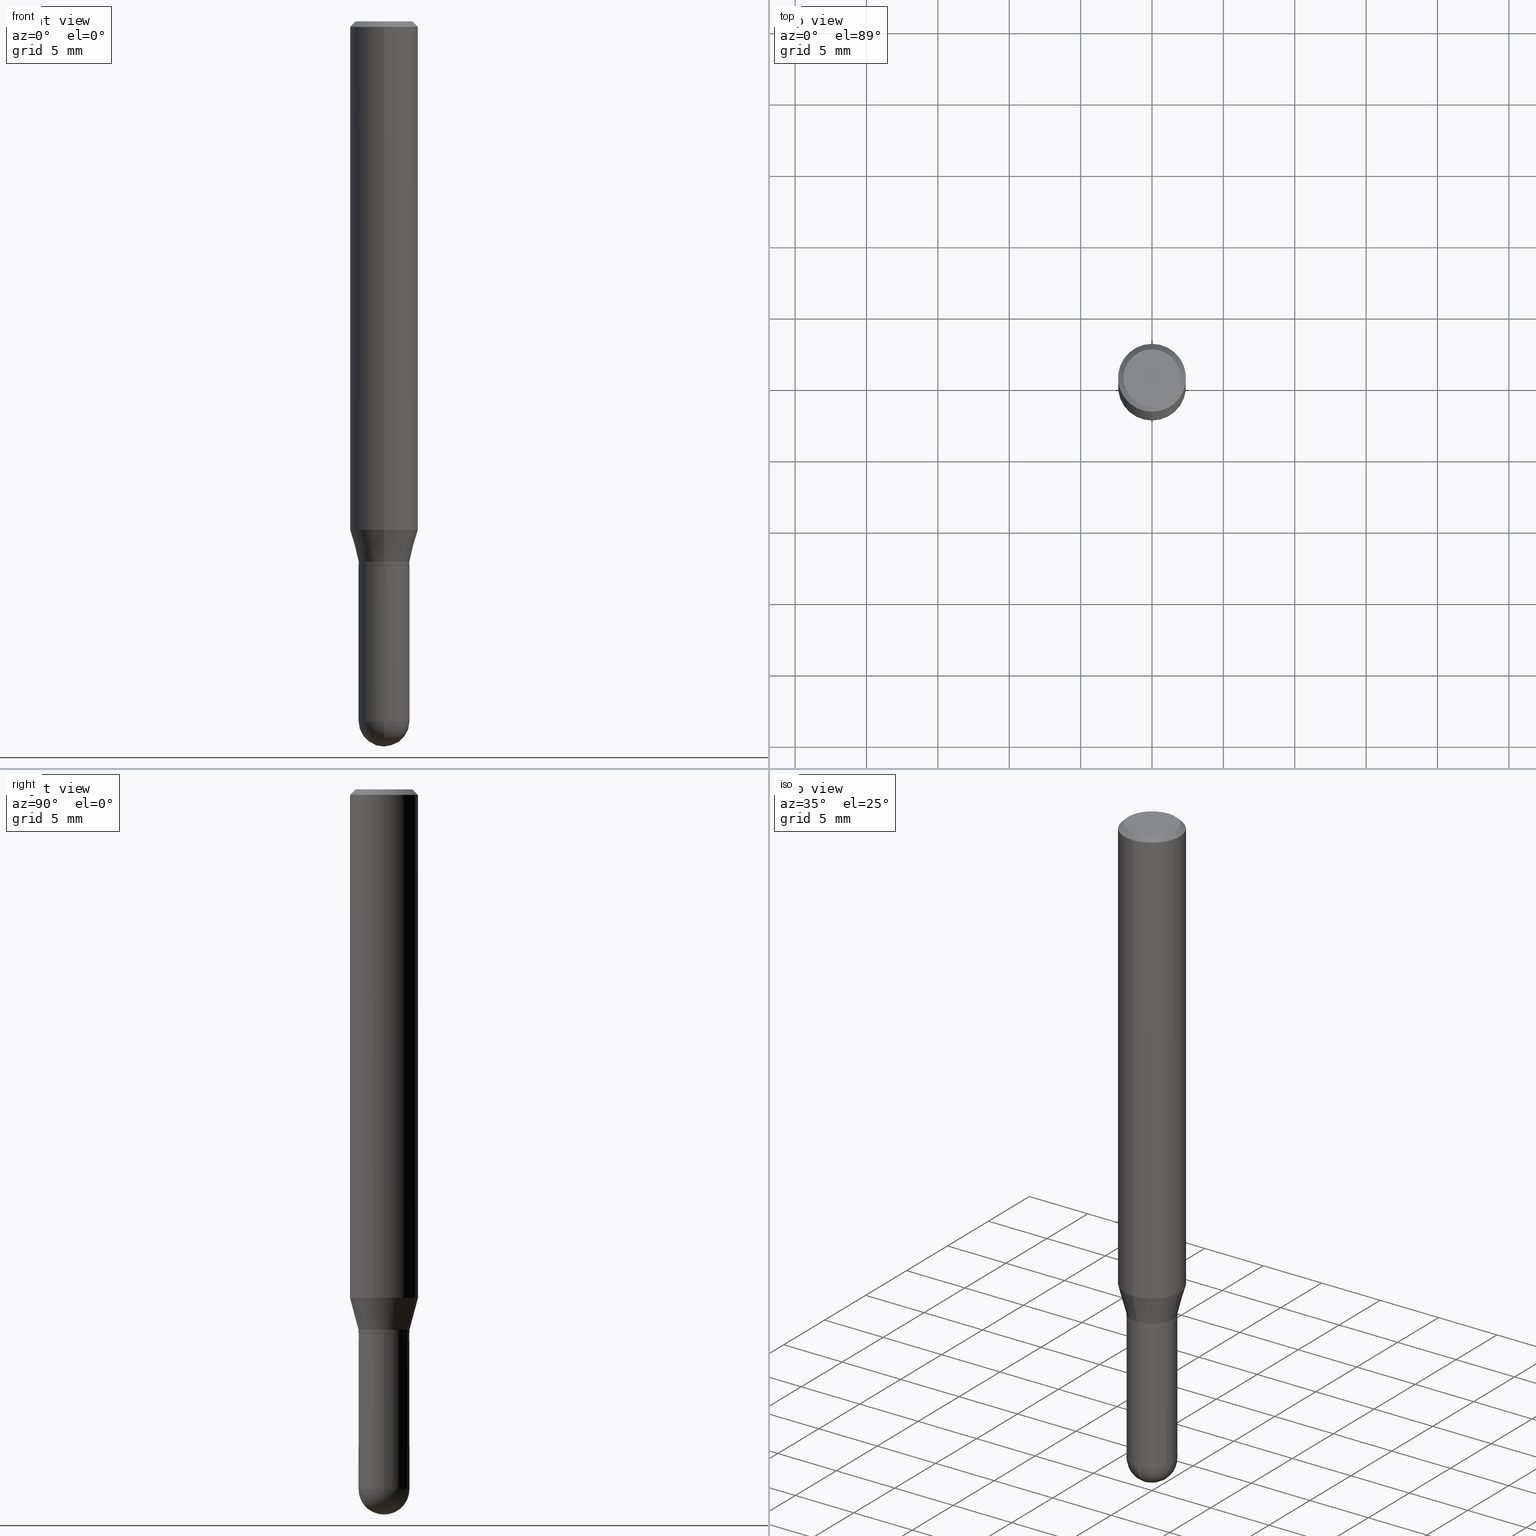
[diagram: canonical four-view strip — front | top / right | iso, engineering-drawing reading convention]
A machine part, canonical four-view strip (front | top / right | iso — engineering-drawing reading convention). The complete STEP part file that produces these views, byte-faithful:
ISO-10303-21;
HEADER;
FILE_DESCRIPTION (( 'STEP AP203' ),
    '1' );
FILE_NAME ('30479.STEP',
    '2024-03-08T15:25:07',
    ( '' ),
    ( '' ),
    'SwSTEP 2.0',
    'SolidWorks 2023',
    '' );
FILE_SCHEMA (( 'CONFIG_CONTROL_DESIGN' ));
ENDSEC;

DATA;
#1 = EDGE_CURVE ( 'NONE', #200, #512, #430, .T. ) ;
#2 = CIRCLE ( 'NONE', #118, 0.07029999999999970994 ) ;
#3 = DIRECTION ( 'NONE',  ( -6.982962677686265922E-15, -1.000000000000000000, 3.885985766236521163E-15 ) ) ;
#4 = CIRCLE ( 'NONE', #364, 0.07030000000000004301 ) ;
#5 = EDGE_LOOP ( 'NONE', ( #125, #220, #61, #92 ) ) ;
#6 = ORIENTED_EDGE ( 'NONE', *, *, #335, .T. ) ;
#7 = ADVANCED_FACE ( 'NONE', ( #124 ), #339, .T. ) ;
#8 = CONICAL_SURFACE ( 'NONE', #106, 0.09375000000000001388, 0.7853981633974480570 ) ;
#9 = AXIS2_PLACEMENT_3D ( 'NONE', #28, #25, #344 ) ;
#10 = ORIENTED_EDGE ( 'NONE', *, *, #360, .F. ) ;
#11 =( NAMED_UNIT ( * ) PLANE_ANGLE_UNIT ( ) SI_UNIT ( $, .RADIAN. ) );
#12 = APPLICATION_PROTOCOL_DEFINITION ( 'international standard', 'config_control_design', 1994, #150 ) ;
#13 = ADVANCED_FACE ( 'NONE', ( #65 ), #503, .T. ) ;
#14 = ORIENTED_EDGE ( 'NONE', *, *, #507, .F. ) ;
#15 = DIRECTION ( 'NONE',  ( 1.000000000000000000, -6.982962677686261189E-15, 0.000000000000000000 ) ) ;
#16 = LOCAL_TIME ( 10, 25, 7.000000000000000000, #445 ) ;
#17 = CLOSED_SHELL ( 'NONE', ( #86, #43, #479, #487, #161, #241, #210, #474, #247, #37, #104, #97 ) ) ;
#18 = EDGE_LOOP ( 'NONE', ( #406, #248, #283, #332 ) ) ;
#19 = DIRECTION ( 'NONE',  ( -6.982962677686265922E-15, -1.000000000000000000, 3.492120384654201603E-15 ) ) ;
#20 = FACE_OUTER_BOUND ( 'NONE', #451, .T. ) ;
#21 = DIRECTION ( 'NONE',  ( -6.982962677686265922E-15, -1.000000000000000000, 3.492120384654201603E-15 ) ) ;
#22 = DIRECTION ( 'NONE',  ( 1.000000000000000000, -6.982962677686261189E-15, 0.000000000000000000 ) ) ;
#23 = CC_DESIGN_DATE_AND_TIME_ASSIGNMENT ( #338, #405, ( #269 ) ) ;
#24 = ORGANIZATION ( 'UNSPECIFIED', 'UNSPECIFIED', '' ) ;
#25 = DIRECTION ( 'NONE',  ( -2.445022562880343100E-29, 3.492120384654201603E-15, 1.000000000000000000 ) ) ;
#26 = DIRECTION ( 'NONE',  ( 6.982962677686265922E-15, 1.000000000000000000, -3.885985766236503808E-15 ) ) ;
#27 = LINE ( 'NONE', #155, #232 ) ;
#28 = CARTESIAN_POINT ( 'NONE',  ( 3.667533844320514090E-29, -5.238180576981300827E-15, -1.499999999999999778 ) ) ;
#29 = PERSON ( 'UNSPECIFIED', 'UNSPECIFIED', 'UNSPECIFIED', ('UNSPECIFIED'), ('UNSPECIFIED'), ('UNSPECIFIED') ) ;
#30 = EDGE_CURVE ( 'NONE', #321, #491, #51, .T. ) ;
#31 = CARTESIAN_POINT ( 'NONE',  ( -4.909022762413059973E-16, -0.07030000000000491411, -1.489999999999999325 ) ) ;
#32 = DIRECTION ( 'NONE',  ( 1.000000000000000000, -6.982962677686268288E-15, 4.876176775795936353E-29 ) ) ;
#33 = ORIENTED_EDGE ( 'NONE', *, *, #353, .T. ) ;
#34 = DIRECTION ( 'NONE',  ( -6.982962677686265922E-15, -1.000000000000000000, 3.483106191921935160E-15 ) ) ;
#35 = CARTESIAN_POINT ( 'NONE',  ( 4.909022762413816294E-16, 0.07029999999999482496, -1.500000000000000222 ) ) ;
#36 = ORIENTED_EDGE ( 'NONE', *, *, #507, .T. ) ;
#37 = ADVANCED_FACE ( 'NONE', ( #389 ), #357, .F. ) ;
#38 = DIRECTION ( 'NONE',  ( 1.839019923739605837E-15, 0.2588190451025257355, 0.9659258262890669799 ) ) ;
#39 = LOCAL_TIME ( 10, 25, 7.000000000000000000, #418 ) ;
#40 = AXIS2_PLACEMENT_3D ( 'NONE', #111, #387, #390 ) ;
#41 = EDGE_LOOP ( 'NONE', ( #166, #294, #56, #126 ) ) ;
#42 = FACE_OUTER_BOUND ( 'NONE', #182, .T. ) ;
#43 = ADVANCED_FACE ( 'NONE', ( #333 ), #78, .T. ) ;
#44 = DIRECTION ( 'NONE',  ( -1.000000000000000000, 7.105427357601001070E-15, -4.926315508542082329E-29 ) ) ;
#45 = VERTEX_POINT ( 'NONE', #255 ) ;
#46 = ORIENTED_EDGE ( 'NONE', *, *, #147, .F. ) ;
#47 = DIRECTION ( 'NONE',  ( 0.000000000000000000, 0.000000000000000000, 1.000000000000000000 ) ) ;
#48 = AXIS2_PLACEMENT_3D ( 'NONE', #478, #44, #444 ) ;
#49 = ORIENTED_EDGE ( 'NONE', *, *, #426, .T. ) ;
#50 = CC_DESIGN_APPROVAL ( #174, ( #77 ) ) ;
#51 = CIRCLE ( 'NONE', #9, 0.06980000000000005644 ) ;
#52 = LINE ( 'NONE', #163, #70 ) ;
#53 = EDGE_CURVE ( 'NONE', #239, #404, #327, .T. ) ;
#54 = ORIENTED_EDGE ( 'NONE', *, *, #279, .F. ) ;
#55 = PERSON_AND_ORGANIZATION ( #29, #24 ) ;
#56 = ORIENTED_EDGE ( 'NONE', *, *, #265, .T. ) ;
#57 = CARTESIAN_POINT ( 'NONE',  ( 6.022805309504406221E-16, 0.07875000000000001443, -2.531073514825954590E-16 ) ) ;
#58 = CIRCLE ( 'NONE', #199, 0.07030000000000002913 ) ;
#59 = AXIS2_PLACEMENT_3D ( 'NONE', #219, #499, #95 ) ;
#60 = PERSON_AND_ORGANIZATION ( #29, #24 ) ;
#61 = ORIENTED_EDGE ( 'NONE', *, *, #85, .F. ) ;
#62 = DIRECTION ( 'NONE',  ( -6.982962677686265133E-15, -1.000000000000000000, 3.492120384654201603E-15 ) ) ;
#63 = EDGE_CURVE ( 'NONE', #256, #404, #421, .T. ) ;
#64 = SECURITY_CLASSIFICATION_LEVEL ( 'unclassified' ) ;
#65 = FACE_OUTER_BOUND ( 'NONE', #351, .T. ) ;
#66 = ORIENTED_EDGE ( 'NONE', *, *, #53, .F. ) ;
#67 = DIRECTION ( 'NONE',  ( -2.445022562880343100E-29, 3.492120384654201603E-15, 1.000000000000000000 ) ) ;
#68 = COORDINATED_UNIVERSAL_TIME_OFFSET ( 5, 0, .BEHIND. ) ;
#69 = DIRECTION ( 'NONE',  ( -6.982962677686265922E-15, -1.000000000000000000, 3.913822340493210566E-15 ) ) ;
#70 = VECTOR ( 'NONE', #435, 39.37007874015748143 ) ;
#71 = CARTESIAN_POINT ( 'NONE',  ( -4.995115432393033060E-16, -0.07030000000000674598, -1.929699999999999527 ) ) ;
#72 = EDGE_CURVE ( 'NONE', #458, #218, #407, .T. ) ;
#73 = DIRECTION ( 'NONE',  ( -2.445022562880342820E-29, 3.492120384654201603E-15, 1.000000000000000000 ) ) ;
#74 = DIRECTION ( 'NONE',  ( 2.438088387897960049E-29, -3.491481338843145188E-15, -1.000000000000000000 ) ) ;
#75 = APPLICATION_CONTEXT ( 'configuration controlled 3d designs of mechanical parts and assemblies' ) ;
#76 = AXIS2_PLACEMENT_3D ( 'NONE', #346, #291, #62 ) ;
#77 = PRODUCT_DEFINITION_FORMATION_WITH_SPECIFIED_SOURCE ( 'ANY', '', #193, .NOT_KNOWN. ) ;
#78 = CONICAL_SURFACE ( 'NONE', #84, 0.06980000000000005644, 0.7853981633974739252 ) ;
#79 = DIRECTION ( 'NONE',  ( -4.937700262164674260E-15, -0.7071067811865632269, 0.7071067811865319186 ) ) ;
#80 = ADVANCED_FACE ( 'NONE', ( #175 ), #449, .T. ) ;
#81 = LINE ( 'NONE', #234, #317 ) ;
#82 = DIRECTION ( 'NONE',  ( -1.807323732225335661E-15, -0.2588190451025189631, 0.9659258262890687563 ) ) ;
#83 = CARTESIAN_POINT ( 'NONE',  ( 4.995115432393871225E-16, 0.07029999999999476945, -1.499500000000000277 ) ) ;
#84 = AXIS2_PLACEMENT_3D ( 'NONE', #493, #441, #140 ) ;
#85 = EDGE_CURVE ( 'NONE', #99, #458, #486, .T. ) ;
#86 = ADVANCED_FACE ( 'NONE', ( #138 ), #295, .T. ) ;
#87 = DIRECTION ( 'NONE',  ( -6.982962677686265922E-15, -1.000000000000000000, 3.492120384654201603E-15 ) ) ;
#88 = AXIS2_PLACEMENT_3D ( 'NONE', #313, #127, #116 ) ;
#89 = ORIENTED_EDGE ( 'NONE', *, *, #376, .T. ) ;
#90 = CARTESIAN_POINT ( 'NONE',  ( 4.719021155295457704E-29, -6.737511539565617508E-15, -1.929699999999999971 ) ) ;
#91 = VECTOR ( 'NONE', #135, 39.37007874015748143 ) ;
#92 = ORIENTED_EDGE ( 'NONE', *, *, #265, .F. ) ;
#93 = VERTEX_POINT ( 'NONE', #100 ) ;
#94 = APPROVAL_DATE_TIME ( #302, #117 ) ;
#95 = DIRECTION ( 'NONE',  ( -6.982962677686265133E-15, -1.000000000000000000, 3.492120384654201603E-15 ) ) ;
#96 = CIRCLE ( 'NONE', #143, 0.07875000000000001443 ) ;
#97 = ADVANCED_FACE ( 'NONE', ( #423 ), #420, .T. ) ;
#98 = APPROVAL_STATUS ( 'not_yet_approved' ) ;
#99 = VERTEX_POINT ( 'NONE', #105 ) ;
#100 = CARTESIAN_POINT ( 'NONE',  ( -6.546527510330871097E-16, -0.09375000000000005551, -0.01499999999999965250 ) ) ;
#101 = VERTEX_POINT ( 'NONE', #262 ) ;
#102 = FACE_OUTER_BOUND ( 'NONE', #370, .T. ) ;
#103 = CARTESIAN_POINT ( 'NONE',  ( 0.000000000000000000, 0.000000000000000000, 0.000000000000000000 ) ) ;
#104 = ADVANCED_FACE ( 'NONE', ( #146 ), #113, .T. ) ;
#105 = CARTESIAN_POINT ( 'NONE',  ( -4.909022762413074764E-16, -0.07030000000000519167, -1.499499999999999611 ) ) ;
#106 = AXIS2_PLACEMENT_3D ( 'NONE', #237, #165, #240 ) ;
#107 = AXIS2_PLACEMENT_3D ( 'NONE', #331, #67, #508 ) ;
#108 = DIRECTION ( 'NONE',  ( -2.445022562880343100E-29, 3.492120384654201603E-15, 1.000000000000000000 ) ) ;
#109 = ORIENTED_EDGE ( 'NONE', *, *, #198, .F. ) ;
#110 = DIRECTION ( 'NONE',  ( -6.982962677686265922E-15, -1.000000000000000000, 2.913971193241880372E-15 ) ) ;
#111 = CARTESIAN_POINT ( 'NONE',  ( 3.667533844320514090E-29, -5.238180576981300827E-15, -1.499999999999999778 ) ) ;
#112 = CC_DESIGN_PERSON_AND_ORGANIZATION_ASSIGNMENT ( #55, #211, ( #269 ) ) ;
#113 = CONICAL_SURFACE ( 'NONE', #287, 0.06980000000000005644, 0.7853981633974739252 ) ;
#114 = DIRECTION ( 'NONE',  ( -2.445022562880342820E-29, 3.492120384654201603E-15, 1.000000000000000000 ) ) ;
#115 = CARTESIAN_POINT ( 'NONE',  ( -4.909022762413433696E-16, -0.07029999999999984872, 2.454960630411898539E-16 ) ) ;
#116 = DIRECTION ( 'NONE',  ( 1.000000000000000000, -6.982962677686261189E-15, 0.000000000000000000 ) ) ;
#117 = APPROVAL ( #322, 'UNSPECIFIED' ) ;
#118 = AXIS2_PLACEMENT_3D ( 'NONE', #274, #431, #3 ) ;
#119 = DIRECTION ( 'NONE',  ( -6.982962677686264344E-15, -1.000000000000000000, 3.492120384654201209E-15 ) ) ;
#120 = VECTOR ( 'NONE', #511, 39.37007874015748143 ) ;
#121 = CARTESIAN_POINT ( 'NONE',  ( 3.667533844320509501E-31, -5.238180576981294836E-17, -0.01499999999999997863 ) ) ;
#122 = VERTEX_POINT ( 'NONE', #254 ) ;
#123 = ORIENTED_EDGE ( 'NONE', *, *, #304, .F. ) ;
#124 = FACE_OUTER_BOUND ( 'NONE', #472, .T. ) ;
#125 = ORIENTED_EDGE ( 'NONE', *, *, #285, .T. ) ;
#126 = ORIENTED_EDGE ( 'NONE', *, *, #258, .F. ) ;
#127 = DIRECTION ( 'NONE',  ( -2.445468806185136597E-29, 3.491481338843145583E-15, 1.000000000000000000 ) ) ;
#128 = CIRCLE ( 'NONE', #231, 0.07875000000000001443 ) ;
#129 = VERTEX_POINT ( 'NONE', #57 ) ;
#130 = VERTEX_POINT ( 'NONE', #462 ) ;
#131 = DIRECTION ( 'NONE',  ( -2.445022562880342820E-29, 3.492120384654201603E-15, 1.000000000000000000 ) ) ;
#132 = PERSON_AND_ORGANIZATION_ROLE ( 'creator' ) ;
#133 = ORIENTED_EDGE ( 'NONE', *, *, #139, .T. ) ;
#134 = VERTEX_POINT ( 'NONE', #71 ) ;
#135 = DIRECTION ( 'NONE',  ( -2.445468806185136877E-29, 3.491481338843145188E-15, 1.000000000000000000 ) ) ;
#136 = CALENDAR_DATE ( 2024, 8, 3 ) ;
#137 = ORIENTED_EDGE ( 'NONE', *, *, #168, .F. ) ;
#138 = FACE_OUTER_BOUND ( 'NONE', #281, .T. ) ;
#139 = EDGE_CURVE ( 'NONE', #512, #256, #4, .T. ) ;
#140 = DIRECTION ( 'NONE',  ( -6.982962677686265922E-15, -1.000000000000000000, 3.913822340493210566E-15 ) ) ;
#141 = SHAPE_DEFINITION_REPRESENTATION ( #356, #310 ) ;
#142 = CARTESIAN_POINT ( 'NONE',  ( 0.07030000000000004301, -6.478269050156512001E-15, -1.929699999999999971 ) ) ;
#143 = AXIS2_PLACEMENT_3D ( 'NONE', #369, #201, #119 ) ;
#144 = APPROVAL_ROLE ( '' ) ;
#145 = ORIENTED_EDGE ( 'NONE', *, *, #376, .F. ) ;
#146 = FACE_OUTER_BOUND ( 'NONE', #41, .T. ) ;
#147 = EDGE_CURVE ( 'NONE', #256, #134, #506, .T. ) ;
#148 = PERSON_AND_ORGANIZATION_ROLE ( 'creator' ) ;
#149 = CARTESIAN_POINT ( 'NONE',  ( 0.07030000000000005689, -5.728124284506063124E-15, -1.499999999999999778 ) ) ;
#150 = APPLICATION_CONTEXT ( 'configuration controlled 3d designs of mechanical parts and assemblies' ) ;
#151 = DIRECTION ( 'NONE',  ( -6.982962677686265922E-15, -1.000000000000000000, 2.913971193241880372E-15 ) ) ;
#152 = CIRCLE ( 'NONE', #88, 0.07030000000000004301 ) ;
#153 = AXIS2_PLACEMENT_3D ( 'NONE', #229, #470, #266 ) ;
#154 = CARTESIAN_POINT ( 'NONE',  ( 6.661338147750938256E-16, 0.09375000000000001388, -3.273862860613314496E-16 ) ) ;
#155 = CARTESIAN_POINT ( 'NONE',  ( -4.874107949024650610E-16, -0.06980000000000530225, -1.499999999999999556 ) ) ;
#156 = EDGE_CURVE ( 'NONE', #218, #447, #437, .T. ) ;
#157 = LINE ( 'NONE', #264, #191 ) ;
#158 = ORIENTED_EDGE ( 'NONE', *, *, #403, .T. ) ;
#159 = AXIS2_PLACEMENT_3D ( 'NONE', #257, #260, #19 ) ;
#160 = DIRECTION ( 'NONE',  ( 4.937700262164546464E-15, 0.7071067811865449082, -0.7071067811865501263 ) ) ;
#161 = ADVANCED_FACE ( 'NONE', ( #20 ), #312, .T. ) ;
#162 = ORIENTED_EDGE ( 'NONE', *, *, #168, .T. ) ;
#163 = CARTESIAN_POINT ( 'NONE',  ( -6.546527510330875041E-16, -0.09375000000000001388, 3.273862860613314496E-16 ) ) ;
#164 = EDGE_LOOP ( 'NONE', ( #482, #446, #432, #162, #109 ) ) ;
#165 = DIRECTION ( 'NONE',  ( 2.445022562880343100E-29, -3.492120384654201603E-15, -1.000000000000000000 ) ) ;
#166 = ORIENTED_EDGE ( 'NONE', *, *, #316, .F. ) ;
#167 = LENGTH_MEASURE_WITH_UNIT ( LENGTH_MEASURE( 0.02539999999999999897 ), #361 );
#168 = EDGE_CURVE ( 'NONE', #200, #239, #224, .T. ) ;
#169 = PERSON_AND_ORGANIZATION ( #29, #24 ) ;
#170 = LOCAL_TIME ( 10, 25, 7.000000000000000000, #68 ) ;
#171 = EDGE_LOOP ( 'NONE', ( #488, #14, #485, #89 ) ) ;
#172 = CARTESIAN_POINT ( 'NONE',  ( 3.643083618691710256E-29, -5.203259373134758290E-15, -1.489999999999999769 ) ) ;
#173 = AXIS2_PLACEMENT_3D ( 'NONE', #414, #250, #409 ) ;
#174 = APPROVAL ( #98, 'UNSPECIFIED' ) ;
#175 = FACE_OUTER_BOUND ( 'NONE', #164, .T. ) ;
#176 = EDGE_LOOP ( 'NONE', ( #359, #371, #123, #253 ) ) ;
#177 = DIRECTION ( 'NONE',  ( -2.445468806185136597E-29, 3.491481338843145583E-15, 1.000000000000000000 ) ) ;
#178 = APPROVAL_DATE_TIME ( #245, #174 ) ;
#179 = ORIENTED_EDGE ( 'NONE', *, *, #72, .T. ) ;
#180 = FACE_OUTER_BOUND ( 'NONE', #416, .T. ) ;
#181 = DATE_TIME_ROLE ( 'creation_date' ) ;
#182 = EDGE_LOOP ( 'NONE', ( #374, #228, #238, #413 ) ) ;
#183 = CIRCLE ( 'NONE', #252, 0.09375000000000001388 ) ;
#184 = DIRECTION ( 'NONE',  ( -2.445022562880343100E-29, 3.492120384654201603E-15, 1.000000000000000000 ) ) ;
#185 = ADVANCED_FACE ( 'NONE', ( #180 ), #227, .T. ) ;
#186 = AXIS2_PLACEMENT_3D ( 'NONE', #172, #184, #290 ) ;
#187 = PERSON_AND_ORGANIZATION ( #29, #24 ) ;
#188 = CARTESIAN_POINT ( 'NONE',  ( 0.07030000000000004301, -4.909022762413449473E-16, 3.427952273384545239E-30 ) ) ;
#189 = DIRECTION ( 'NONE',  ( -2.445022562880343100E-29, 3.492120384654201603E-15, 1.000000000000000000 ) ) ;
#190 = CARTESIAN_POINT ( 'NONE',  ( 3.667533844320509501E-31, -5.238180576981294836E-17, -0.01499999999999997863 ) ) ;
#191 = VECTOR ( 'NONE', #38, 39.37007874015748143 ) ;
#192 = CIRCLE ( 'NONE', #153, 0.07029999999999998750 ) ;
#193 = PRODUCT ( '30479', '30479', '', ( #480 ) ) ;
#194 = CC_DESIGN_DATE_AND_TIME_ASSIGNMENT ( #343, #181, ( #273 ) ) ;
#195 = FACE_OUTER_BOUND ( 'NONE', #509, .T. ) ;
#196 = DIRECTION ( 'NONE',  ( 6.982962677686266711E-15, 1.000000000000000000, 0.000000000000000000 ) ) ;
#197 = LINE ( 'NONE', #154, #401 ) ;
#198 = EDGE_CURVE ( 'NONE', #404, #239, #455, .T. ) ;
#199 = AXIS2_PLACEMENT_3D ( 'NONE', #305, #354, #196 ) ;
#200 = VERTEX_POINT ( 'NONE', #142 ) ;
#201 = DIRECTION ( 'NONE',  ( -2.445022562880343100E-29, 3.492120384654201603E-15, 1.000000000000000000 ) ) ;
#202 =( NAMED_UNIT ( * ) SI_UNIT ( $, .STERADIAN. ) SOLID_ANGLE_UNIT ( ) );
#203 = AXIS2_PLACEMENT_3D ( 'NONE', #103, #226, #32 ) ;
#204 = DIRECTION ( 'NONE',  ( 1.000000000000000000, 0.000000000000000000, 0.000000000000000000 ) ) ;
#205 = DIRECTION ( 'NONE',  ( 1.000000000000000000, -6.982962677686261189E-15, 0.000000000000000000 ) ) ;
#206 = CC_DESIGN_PERSON_AND_ORGANIZATION_ASSIGNMENT ( #299, #259, ( #77 ) ) ;
#207 = ORIENTED_EDGE ( 'NONE', *, *, #386, .T. ) ;
#208 = DIRECTION ( 'NONE',  ( 6.982962677686265922E-15, 1.000000000000000000, -3.483106191921935160E-15 ) ) ;
#209 = CALENDAR_DATE ( 2024, 8, 3 ) ;
#210 = ADVANCED_FACE ( 'NONE', ( #102 ), #464, .T. ) ;
#211 = PERSON_AND_ORGANIZATION_ROLE ( 'classification_officer' ) ;
#212 = CARTESIAN_POINT ( 'NONE',  ( -0.07030000000000004301, 4.995115432393507363E-16, -3.458011368449201672E-30 ) ) ;
#213 = DIRECTION ( 'NONE',  ( -2.445022562880342820E-29, 3.492120384654201603E-15, 1.000000000000000000 ) ) ;
#214 = ORIENTED_EDGE ( 'NONE', *, *, #63, .T. ) ;
#215 = CARTESIAN_POINT ( 'NONE',  ( 4.719021155295457704E-29, -6.737511539565617508E-15, -1.929699999999999971 ) ) ;
#216 = VECTOR ( 'NONE', #73, 39.37007874015748143 ) ;
#217 = COORDINATED_UNIVERSAL_TIME_OFFSET ( 5, 0, .BEHIND. ) ;
#218 = VERTEX_POINT ( 'NONE', #417 ) ;
#219 = CARTESIAN_POINT ( 'NONE',  ( 0.000000000000000000, 0.000000000000000000, 0.000000000000000000 ) ) ;
#220 = ORIENTED_EDGE ( 'NONE', *, *, #316, .T. ) ;
#221 = DIRECTION ( 'NONE',  ( -2.445022562880343100E-29, 3.492120384654201603E-15, 1.000000000000000000 ) ) ;
#222 = MANIFOLD_SOLID_BREP ( 'Body-Move/Copy2[2]', #17 ) ;
#223 = CALENDAR_DATE ( 2024, 8, 3 ) ;
#224 = LINE ( 'NONE', #188, #91 ) ;
#225 = CLOSED_SHELL ( 'NONE', ( #13, #185, #397, #7, #80 ) ) ;
#226 = DIRECTION ( 'NONE',  ( -2.445468806185136597E-29, 3.491481338843145583E-15, 1.000000000000000000 ) ) ;
#227 = SPHERICAL_SURFACE ( 'NONE', #473, 0.07030000000000002913 ) ;
#228 = ORIENTED_EDGE ( 'NONE', *, *, #460, .T. ) ;
#229 = CARTESIAN_POINT ( 'NONE',  ( 3.666311333039074543E-29, -5.236434516788973779E-15, -1.499500000000000055 ) ) ;
#230 = DIRECTION ( 'NONE',  ( -2.445022562880343100E-29, 3.492120384654201603E-15, 1.000000000000000000 ) ) ;
#231 = AXIS2_PLACEMENT_3D ( 'NONE', #347, #230, #424 ) ;
#232 = VECTOR ( 'NONE', #79, 39.37007874015748143 ) ;
#233 = DIRECTION ( 'NONE',  ( -2.445022562880343100E-29, 3.492120384654201603E-15, 1.000000000000000000 ) ) ;
#234 = CARTESIAN_POINT ( 'NONE',  ( 6.546527510330878985E-16, 0.09374999999999995837, -0.01500000000000030476 ) ) ;
#235 = CARTESIAN_POINT ( 'NONE',  ( 0.000000000000000000, 0.000000000000000000, 0.000000000000000000 ) ) ;
#236 = AXIS2_PLACEMENT_3D ( 'NONE', #425, #505, #151 ) ;
#237 = CARTESIAN_POINT ( 'NONE',  ( 3.667533844320509501E-31, -5.238180576981294836E-17, -0.01499999999999997863 ) ) ;
#238 = ORIENTED_EDGE ( 'NONE', *, *, #304, .T. ) ;
#239 = VERTEX_POINT ( 'NONE', #149 ) ;
#240 = DIRECTION ( 'NONE',  ( 6.982962677686265922E-15, 1.000000000000000000, -3.483106191921935160E-15 ) ) ;
#241 = ADVANCED_FACE ( 'NONE', ( #329 ), #427, .T. ) ;
#242 = CARTESIAN_POINT ( 'NONE',  ( 0.000000000000000000, 0.000000000000000000, 0.000000000000000000 ) ) ;
#243 = CIRCLE ( 'NONE', #236, 0.09375000000000001388 ) ;
#244 = AXIS2_PLACEMENT_3D ( 'NONE', #489, #341, #492 ) ;
#245 = DATE_AND_TIME ( #223, #261 ) ;
#246 = DIRECTION ( 'NONE',  ( -2.445468806185136877E-29, 3.491481338843145188E-15, 1.000000000000000000 ) ) ;
#247 = ADVANCED_FACE ( 'NONE', ( #195 ), #433, .F. ) ;
#248 = ORIENTED_EDGE ( 'NONE', *, *, #258, .T. ) ;
#249 = ORIENTED_EDGE ( 'NONE', *, *, #1, .T. ) ;
#250 = DIRECTION ( 'NONE',  ( -2.445468806185136597E-29, 3.491481338843145583E-15, 1.000000000000000000 ) ) ;
#251 = APPROVAL_STATUS ( 'not_yet_approved' ) ;
#252 = AXIS2_PLACEMENT_3D ( 'NONE', #468, #108, #110 ) ;
#253 = ORIENTED_EDGE ( 'NONE', *, *, #469, .F. ) ;
#254 = CARTESIAN_POINT ( 'NONE',  ( -6.546527510330530901E-16, -0.09375000000000488498, -1.402483408562508638 ) ) ;
#255 = CARTESIAN_POINT ( 'NONE',  ( 4.930690017322777259E-29, -6.926034971227925253E-15, -2.000000000000000000 ) ) ;
#256 = VERTEX_POINT ( 'NONE', #275 ) ;
#257 = CARTESIAN_POINT ( 'NONE',  ( 0.000000000000000000, 0.000000000000000000, 0.000000000000000000 ) ) ;
#258 = EDGE_CURVE ( 'NONE', #458, #99, #192, .T. ) ;
#259 = PERSON_AND_ORGANIZATION_ROLE ( 'design_supplier' ) ;
#260 = DIRECTION ( 'NONE',  ( -2.445022562880343100E-29, 3.492120384654201603E-15, 1.000000000000000000 ) ) ;
#261 = LOCAL_TIME ( 10, 25, 7.000000000000000000, #217 ) ;
#262 = CARTESIAN_POINT ( 'NONE',  ( 6.661338147751283383E-16, 0.09374999999999512890, -1.402483408562509304 ) ) ;
#263 = VECTOR ( 'NONE', #213, 39.37007874015748143 ) ;
#264 = CARTESIAN_POINT ( 'NONE',  ( 4.995115432393847559E-16, 0.07029999999999450577, -1.489999999999999991 ) ) ;
#265 = EDGE_CURVE ( 'NONE', #491, #99, #27, .T. ) ;
#266 = DIRECTION ( 'NONE',  ( -6.982962677686265133E-15, -1.000000000000000000, 3.885985766236506175E-15 ) ) ;
#267 = UNCERTAINTY_MEASURE_WITH_UNIT (LENGTH_MEASURE( 1.000000000000000082E-05 ), #314, 'distance_accuracy_value', 'NONE');
#268 = CARTESIAN_POINT ( 'NONE',  ( 3.667533844320509501E-31, -5.238180576981294836E-17, -0.01499999999999997863 ) ) ;
#269 = SECURITY_CLASSIFICATION ( '', '', #64 ) ;
#270 = CC_DESIGN_APPROVAL ( #117, ( #273 ) ) ;
#271 = AXIS2_PLACEMENT_3D ( 'NONE', #419, #382, #345 ) ;
#272 = ORIENTED_EDGE ( 'NONE', *, *, #53, .T. ) ;
#273 = PRODUCT_DEFINITION ( 'UNKNOWN', '', #77, #277 ) ;
#274 = CARTESIAN_POINT ( 'NONE',  ( 3.643083618691710256E-29, -5.203259373134758290E-15, -1.489999999999999769 ) ) ;
#275 = CARTESIAN_POINT ( 'NONE',  ( -0.07030000000000004301, -5.487855230675816416E-15, -1.929699999999999971 ) ) ;
#276 = CARTESIAN_POINT ( 'NONE',  ( 4.909022762413921804E-16, 0.07029999999999332616, -1.929700000000000193 ) ) ;
#277 = DESIGN_CONTEXT ( 'detailed design', #150, 'design' ) ;
#278 = CIRCLE ( 'NONE', #349, 0.09375000000000001388 ) ;
#279 = EDGE_CURVE ( 'NONE', #99, #447, #350, .T. ) ;
#280 = DIRECTION ( 'NONE',  ( -2.445022562880343100E-29, 3.492120384654201603E-15, 1.000000000000000000 ) ) ;
#281 = EDGE_LOOP ( 'NONE', ( #484, #179, #289, #54 ) ) ;
#282 = PERSON_AND_ORGANIZATION ( #29, #24 ) ;
#283 = ORIENTED_EDGE ( 'NONE', *, *, #279, .T. ) ;
#284 = AXIS2_PLACEMENT_3D ( 'NONE', #190, #233, #393 ) ;
#285 = EDGE_CURVE ( 'NONE', #491, #321, #466, .T. ) ;
#286 = DIRECTION ( 'NONE',  ( 2.445022562880343100E-29, -3.492120384654201603E-15, -1.000000000000000000 ) ) ;
#287 = AXIS2_PLACEMENT_3D ( 'NONE', #453, #221, #69 ) ;
#288 = APPROVAL_DATE_TIME ( #373, #307 ) ;
#289 = ORIENTED_EDGE ( 'NONE', *, *, #426, .F. ) ;
#290 = DIRECTION ( 'NONE',  ( -6.982962677686265922E-15, -1.000000000000000000, 3.885985766236521163E-15 ) ) ;
#291 = DIRECTION ( 'NONE',  ( -2.445022562880343100E-29, 3.492120384654201603E-15, 1.000000000000000000 ) ) ;
#292 = COORDINATED_UNIVERSAL_TIME_OFFSET ( 5, 0, .BEHIND. ) ;
#293 = CIRCLE ( 'NONE', #48, 0.07030000000000002913 ) ;
#294 = ORIENTED_EDGE ( 'NONE', *, *, #30, .T. ) ;
#295 = CYLINDRICAL_SURFACE ( 'NONE', #59, 0.07029999999999984872 ) ;
#296 = VECTOR ( 'NONE', #246, 39.37007874015748143 ) ;
#297 = CC_DESIGN_PERSON_AND_ORGANIZATION_ASSIGNMENT ( #60, #148, ( #77 ) ) ;
#298 = DIMENSIONAL_EXPONENTS ( 1.000000000000000000, 0.000000000000000000, 0.000000000000000000, 0.000000000000000000, 0.000000000000000000, 0.000000000000000000, 0.000000000000000000 ) ;
#299 = PERSON_AND_ORGANIZATION ( #29, #24 ) ;
#300 = EDGE_LOOP ( 'NONE', ( #498, #368, #6, #315 ) ) ;
#301 = DIRECTION ( 'NONE',  ( -6.982962677686265922E-15, -1.000000000000000000, 3.885985766236521163E-15 ) ) ;
#302 = DATE_AND_TIME ( #415, #170 ) ;
#303 = CARTESIAN_POINT ( 'NONE',  ( 4.755767650741496407E-29, -6.684888466606255625E-15, -1.929699999999999971 ) ) ;
#304 = EDGE_CURVE ( 'NONE', #93, #318, #278, .T. ) ;
#305 = CARTESIAN_POINT ( 'NONE',  ( 4.755767650741496407E-29, -6.684888466606255625E-15, -1.929699999999999971 ) ) ;
#306 = PLANE ( 'NONE',  #454 ) ;
#307 = APPROVAL ( #251, 'UNSPECIFIED' ) ;
#308 = DIRECTION ( 'NONE',  ( 6.982962677686265922E-15, 1.000000000000000000, -3.492120384654201603E-15 ) ) ;
#309 = CARTESIAN_POINT ( 'NONE',  ( -0.07030000000000007077, -5.487855230675816416E-15, -1.499999999999999778 ) ) ;
#310 = ADVANCED_BREP_SHAPE_REPRESENTATION ( '30479', ( #385, #222, #422 ), #396 ) ;
#311 = APPROVAL_PERSON_ORGANIZATION ( #169, #117, #483 ) ;
#312 = CONICAL_SURFACE ( 'NONE', #186, 0.07029999999999970994, 0.2617993877991510732 ) ;
#313 = CARTESIAN_POINT ( 'NONE',  ( 4.719021155295457704E-29, -6.737511539565617508E-15, -1.929699999999999971 ) ) ;
#314 =( CONVERSION_BASED_UNIT ( 'INCH', #167 ) LENGTH_UNIT ( ) NAMED_UNIT ( #298 ) );
#315 = ORIENTED_EDGE ( 'NONE', *, *, #410, .F. ) ;
#316 = EDGE_CURVE ( 'NONE', #321, #458, #475, .T. ) ;
#317 = VECTOR ( 'NONE', #160, 39.37007874015748143 ) ;
#318 = VERTEX_POINT ( 'NONE', #348 ) ;
#319 = CARTESIAN_POINT ( 'NONE',  ( -4.909022762413059973E-16, -0.07030000000000491411, -1.489999999999999325 ) ) ;
#320 = DIRECTION ( 'NONE',  ( -4.851104656540962697E-15, -0.7071067811865497932, -0.7071067811865452413 ) ) ;
#321 = VERTEX_POINT ( 'NONE', #429 ) ;
#322 = APPROVAL_STATUS ( 'not_yet_approved' ) ;
#323 = ORIENTED_EDGE ( 'NONE', *, *, #469, .T. ) ;
#324 = ORIENTED_EDGE ( 'NONE', *, *, #30, .F. ) ;
#325 = ORIENTED_EDGE ( 'NONE', *, *, #139, .F. ) ;
#326 = AXIS2_PLACEMENT_3D ( 'NONE', #121, #286, #208 ) ;
#327 = CIRCLE ( 'NONE', #342, 0.07030000000000005689 ) ;
#328 = ORIENTED_EDGE ( 'NONE', *, *, #285, .F. ) ;
#329 = FACE_OUTER_BOUND ( 'NONE', #300, .T. ) ;
#330 = ORIENTED_EDGE ( 'NONE', *, *, #198, .T. ) ;
#331 = CARTESIAN_POINT ( 'NONE',  ( 3.643083618691710256E-29, -5.203259373134758290E-15, -1.489999999999999769 ) ) ;
#332 = ORIENTED_EDGE ( 'NONE', *, *, #156, .F. ) ;
#333 = FACE_OUTER_BOUND ( 'NONE', #5, .T. ) ;
#334 = DIRECTION ( 'NONE',  ( -1.000000000000000000, 6.982962677686265922E-15, -4.883557194083112340E-29 ) ) ;
#335 = EDGE_CURVE ( 'NONE', #447, #122, #510, .T. ) ;
#336 = CARTESIAN_POINT ( 'NONE',  ( 3.668203209277704335E-29, -5.237222008264717388E-15, -1.499999999999999778 ) ) ;
#337 = CC_DESIGN_SECURITY_CLASSIFICATION ( #269, ( #77 ) ) ;
#338 = DATE_AND_TIME ( #209, #16 ) ;
#339 = SPHERICAL_SURFACE ( 'NONE', #271, 0.07030000000000002913 ) ;
#340 = ORIENTED_EDGE ( 'NONE', *, *, #501, .F. ) ;
#341 = DIRECTION ( 'NONE',  ( -2.445022562880343100E-29, 3.492120384654201603E-15, 1.000000000000000000 ) ) ;
#342 = AXIS2_PLACEMENT_3D ( 'NONE', #336, #500, #463 ) ;
#343 = DATE_AND_TIME ( #502, #465 ) ;
#344 = DIRECTION ( 'NONE',  ( -6.982962677686265922E-15, -1.000000000000000000, 3.913822340493210566E-15 ) ) ;
#345 = DIRECTION ( 'NONE',  ( 6.982962677686265922E-15, 1.000000000000000000, -3.885985766236503808E-15 ) ) ;
#346 = CARTESIAN_POINT ( 'NONE',  ( 0.000000000000000000, 0.000000000000000000, 0.000000000000000000 ) ) ;
#347 = CARTESIAN_POINT ( 'NONE',  ( -5.353897400011380051E-46, 7.646740987903862261E-32, 2.189712880892295595E-17 ) ) ;
#348 = CARTESIAN_POINT ( 'NONE',  ( 6.661338147751283383E-16, 0.09374999999999994449, -0.01500000000000030476 ) ) ;
#349 = AXIS2_PLACEMENT_3D ( 'NONE', #268, #189, #34 ) ;
#350 = LINE ( 'NONE', #115, #216 ) ;
#351 = EDGE_LOOP ( 'NONE', ( #133, #214, #66, #137, #249 ) ) ;
#352 = DIRECTION ( 'NONE',  ( -1.000000000000000000, 6.982962677686265922E-15, -4.876176775795935793E-29 ) ) ;
#353 = EDGE_CURVE ( 'NONE', #130, #129, #128, .T. ) ;
#354 = DIRECTION ( 'NONE',  ( 1.000000000000000000, -6.982962677686265922E-15, 4.883557194083112340E-29 ) ) ;
#355 = APPROVAL_PERSON_ORGANIZATION ( #377, #307, #456 ) ;
#356 = PRODUCT_DEFINITION_SHAPE ( 'NONE', 'NONE',  #273 ) ;
#357 = PLANE ( 'NONE',  #391 ) ;
#358 = FACE_OUTER_BOUND ( 'NONE', #176, .T. ) ;
#359 = ORIENTED_EDGE ( 'NONE', *, *, #360, .T. ) ;
#360 = EDGE_CURVE ( 'NONE', #122, #101, #243, .T. ) ;
#361 =( LENGTH_UNIT ( ) NAMED_UNIT ( * ) SI_UNIT ( $, .METRE. ) );
#362 = CIRCLE ( 'NONE', #284, 0.09375000000000001388 ) ;
#363 = ORIENTED_EDGE ( 'NONE', *, *, #386, .F. ) ;
#364 = AXIS2_PLACEMENT_3D ( 'NONE', #215, #177, #22 ) ;
#365 = CARTESIAN_POINT ( 'NONE',  ( 3.667533844320514090E-29, -5.238180576981300827E-15, -1.499999999999999778 ) ) ;
#366 = APPLICATION_PROTOCOL_DEFINITION ( 'international standard', 'config_control_design', 1994, #75 ) ;
#367 = CC_DESIGN_PERSON_AND_ORGANIZATION_ASSIGNMENT ( #282, #402, ( #193 ) ) ;
#368 = ORIENTED_EDGE ( 'NONE', *, *, #156, .T. ) ;
#369 = CARTESIAN_POINT ( 'NONE',  ( -5.353897400011380051E-46, 7.646740987903862261E-32, 2.189712880892295595E-17 ) ) ;
#370 = EDGE_LOOP ( 'NONE', ( #448, #378, #323, #145 ) ) ;
#371 = ORIENTED_EDGE ( 'NONE', *, *, #392, .T. ) ;
#372 = AXIS2_PLACEMENT_3D ( 'NONE', #383, #494, #504 ) ;
#373 = DATE_AND_TIME ( #136, #39 ) ;
#374 = ORIENTED_EDGE ( 'NONE', *, *, #353, .F. ) ;
#375 = CARTESIAN_POINT ( 'NONE',  ( 4.719021155295457704E-29, -6.737511539565617508E-15, -1.929699999999999971 ) ) ;
#376 = EDGE_CURVE ( 'NONE', #318, #93, #362, .T. ) ;
#377 = PERSON_AND_ORGANIZATION ( #29, #24 ) ;
#378 = ORIENTED_EDGE ( 'NONE', *, *, #410, .T. ) ;
#379 = DIRECTION ( 'NONE',  ( -2.445022562880343100E-29, 3.492120384654201603E-15, 1.000000000000000000 ) ) ;
#380 = DIRECTION ( 'NONE',  ( -2.445468806185136597E-29, 3.491481338843145583E-15, 1.000000000000000000 ) ) ;
#381 = AXIS2_PLACEMENT_3D ( 'NONE', #235, #280, #87 ) ;
#382 = DIRECTION ( 'NONE',  ( -1.000000000000000000, 6.982962677686265922E-15, -4.883557194083112340E-29 ) ) ;
#383 = CARTESIAN_POINT ( 'NONE',  ( 3.668203209277704335E-29, -5.237222008264717388E-15, -1.499999999999999778 ) ) ;
#384 = AXIS2_PLACEMENT_3D ( 'NONE', #459, #379, #301 ) ;
#385 = MANIFOLD_SOLID_BREP ( 'Body-Move/Copy2[1]', #225 ) ;
#386 = EDGE_CURVE ( 'NONE', #45, #512, #58, .T. ) ;
#387 = DIRECTION ( 'NONE',  ( -2.445022562880343100E-29, 3.492120384654201603E-15, 1.000000000000000000 ) ) ;
#388 = DIRECTION ( 'NONE',  ( 2.445022562880342820E-29, -3.492120384654201603E-15, -1.000000000000000000 ) ) ;
#389 = FACE_OUTER_BOUND ( 'NONE', #408, .T. ) ;
#390 = DIRECTION ( 'NONE',  ( -6.982962677686265922E-15, -1.000000000000000000, 3.913822340493210566E-15 ) ) ;
#391 = AXIS2_PLACEMENT_3D ( 'NONE', #365, #131, #21 ) ;
#392 = EDGE_CURVE ( 'NONE', #101, #318, #197, .T. ) ;
#393 = DIRECTION ( 'NONE',  ( -6.982962677686265922E-15, -1.000000000000000000, 3.483106191921935160E-15 ) ) ;
#394 = CARTESIAN_POINT ( 'NONE',  ( 5.499083108677934443E-16, 0.07875000000000001443, -2.640559158870569216E-16 ) ) ;
#395 = CARTESIAN_POINT ( 'NONE',  ( -4.874107949024650610E-16, -0.06980000000000530225, -1.499999999999999556 ) ) ;
#396 =( GEOMETRIC_REPRESENTATION_CONTEXT ( 3 ) GLOBAL_UNCERTAINTY_ASSIGNED_CONTEXT ( ( #267 ) ) GLOBAL_UNIT_ASSIGNED_CONTEXT ( ( #314, #11, #202 ) ) REPRESENTATION_CONTEXT ( 'NONE', 'WORKASPACE' ) );
#397 = ADVANCED_FACE ( 'NONE', ( #467 ), #306, .F. ) ;
#398 = CARTESIAN_POINT ( 'NONE',  ( -6.431716872910806895E-16, -0.09375000000000005551, -0.01499999999999965250 ) ) ;
#399 = CYLINDRICAL_SURFACE ( 'NONE', #381, 0.09375000000000001388 ) ;
#400 = EDGE_LOOP ( 'NONE', ( #272, #330 ) ) ;
#401 = VECTOR ( 'NONE', #114, 39.37007874015748143 ) ;
#402 = PERSON_AND_ORGANIZATION_ROLE ( 'design_owner' ) ;
#403 = EDGE_CURVE ( 'NONE', #218, #101, #157, .T. ) ;
#404 = VERTEX_POINT ( 'NONE', #309 ) ;
#405 = DATE_TIME_ROLE ( 'classification_date' ) ;
#406 = ORIENTED_EDGE ( 'NONE', *, *, #72, .F. ) ;
#407 = LINE ( 'NONE', #481, #263 ) ;
#408 = EDGE_LOOP ( 'NONE', ( #328, #324 ) ) ;
#409 = DIRECTION ( 'NONE',  ( 1.000000000000000000, -6.982962677686268288E-15, 4.876176775795936353E-29 ) ) ;
#410 = EDGE_CURVE ( 'NONE', #101, #122, #183, .T. ) ;
#411 = AXIS2_PLACEMENT_3D ( 'NONE', #375, #380, #15 ) ;
#412 = PERSON_AND_ORGANIZATION ( #29, #24 ) ;
#413 = ORIENTED_EDGE ( 'NONE', *, *, #434, .F. ) ;
#414 = CARTESIAN_POINT ( 'NONE',  ( 0.000000000000000000, 0.000000000000000000, 0.000000000000000000 ) ) ;
#415 = CALENDAR_DATE ( 2024, 8, 3 ) ;
#416 = EDGE_LOOP ( 'NONE', ( #363, #476, #46, #325 ) ) ;
#417 = CARTESIAN_POINT ( 'NONE',  ( 5.828226790072563992E-16, 0.07029999999999450577, -1.489999999999999991 ) ) ;
#418 = COORDINATED_UNIVERSAL_TIME_OFFSET ( 5, 0, .BEHIND. ) ;
#419 = CARTESIAN_POINT ( 'NONE',  ( 4.755767650741496407E-29, -6.684888466606255625E-15, -1.929699999999999971 ) ) ;
#420 = CYLINDRICAL_SURFACE ( 'NONE', #76, 0.07029999999999984872 ) ;
#421 = LINE ( 'NONE', #212, #296 ) ;
#422 = AXIS2_PLACEMENT_3D ( 'NONE', #242, #47, #204 ) ;
#423 = FACE_OUTER_BOUND ( 'NONE', #18, .T. ) ;
#424 = DIRECTION ( 'NONE',  ( -6.982962677686264344E-15, -1.000000000000000000, 3.492120384654201209E-15 ) ) ;
#425 = CARTESIAN_POINT ( 'NONE',  ( 3.429103578000664545E-29, -4.897640900180445107E-15, -1.402483408562508860 ) ) ;
#426 = EDGE_CURVE ( 'NONE', #447, #218, #2, .T. ) ;
#427 = CONICAL_SURFACE ( 'NONE', #107, 0.07029999999999970994, 0.2617993877991510732 ) ;
#428 = VECTOR ( 'NONE', #320, 39.37007874015748143 ) ;
#429 = CARTESIAN_POINT ( 'NONE',  ( 4.977351863999869690E-16, 0.06979999999999481064, -1.500000000000000222 ) ) ;
#430 = CIRCLE ( 'NONE', #497, 0.07030000000000004301 ) ;
#431 = DIRECTION ( 'NONE',  ( -2.445022562880343100E-29, 3.492120384654201603E-15, 1.000000000000000000 ) ) ;
#432 = ORIENTED_EDGE ( 'NONE', *, *, #440, .T. ) ;
#433 = PLANE ( 'NONE',  #495 ) ;
#434 = EDGE_CURVE ( 'NONE', #129, #318, #81, .T. ) ;
#435 = DIRECTION ( 'NONE',  ( -2.445022562880342820E-29, 3.492120384654201603E-15, 1.000000000000000000 ) ) ;
#436 = CC_DESIGN_APPROVAL ( #307, ( #269 ) ) ;
#437 = CIRCLE ( 'NONE', #384, 0.07029999999999970994 ) ;
#438 = ORIENTED_EDGE ( 'NONE', *, *, #1, .F. ) ;
#439 = LINE ( 'NONE', #398, #428 ) ;
#440 = EDGE_CURVE ( 'NONE', #134, #200, #152, .T. ) ;
#441 = DIRECTION ( 'NONE',  ( -2.445022562880343100E-29, 3.492120384654201603E-15, 1.000000000000000000 ) ) ;
#442 = FACE_OUTER_BOUND ( 'NONE', #171, .T. ) ;
#443 = APPROVAL_PERSON_ORGANIZATION ( #412, #174, #144 ) ;
#444 = DIRECTION ( 'NONE',  ( -7.105427357601001859E-15, -1.000000000000000000, 0.000000000000000000 ) ) ;
#445 = COORDINATED_UNIVERSAL_TIME_OFFSET ( 5, 0, .BEHIND. ) ;
#446 = ORIENTED_EDGE ( 'NONE', *, *, #147, .T. ) ;
#447 = VERTEX_POINT ( 'NONE', #319 ) ;
#448 = ORIENTED_EDGE ( 'NONE', *, *, #392, .F. ) ;
#449 = CYLINDRICAL_SURFACE ( 'NONE', #173, 0.07030000000000004301 ) ;
#450 = CC_DESIGN_PERSON_AND_ORGANIZATION_ASSIGNMENT ( #187, #132, ( #273 ) ) ;
#451 = EDGE_LOOP ( 'NONE', ( #49, #158, #10, #461 ) ) ;
#452 = ORIENTED_EDGE ( 'NONE', *, *, #440, .F. ) ;
#453 = CARTESIAN_POINT ( 'NONE',  ( 3.667533844320514090E-29, -5.238180576981300827E-15, -1.499999999999999778 ) ) ;
#454 = AXIS2_PLACEMENT_3D ( 'NONE', #35, #74, #352 ) ;
#455 = CIRCLE ( 'NONE', #372, 0.07030000000000005689 ) ;
#456 = APPROVAL_ROLE ( '' ) ;
#457 = DIRECTION ( 'NONE',  ( -2.445468806185136597E-29, 3.491481338843145583E-15, 1.000000000000000000 ) ) ;
#458 = VERTEX_POINT ( 'NONE', #83 ) ;
#459 = CARTESIAN_POINT ( 'NONE',  ( 3.643083618691710256E-29, -5.203259373134758290E-15, -1.489999999999999769 ) ) ;
#460 = EDGE_CURVE ( 'NONE', #130, #93, #439, .T. ) ;
#461 = ORIENTED_EDGE ( 'NONE', *, *, #335, .F. ) ;
#462 = CARTESIAN_POINT ( 'NONE',  ( -5.917179523077944868E-16, -0.07875000000000001443, 2.969016091004413093E-16 ) ) ;
#463 = DIRECTION ( 'NONE',  ( 1.000000000000000000, -6.982962677686273810E-15, 0.000000000000000000 ) ) ;
#464 = CYLINDRICAL_SURFACE ( 'NONE', #159, 0.09375000000000001388 ) ;
#465 = LOCAL_TIME ( 10, 25, 7.000000000000000000, #292 ) ;
#466 = CIRCLE ( 'NONE', #40, 0.06980000000000005644 ) ;
#467 = FACE_OUTER_BOUND ( 'NONE', #400, .T. ) ;
#468 = CARTESIAN_POINT ( 'NONE',  ( 3.429103578000664545E-29, -4.897640900180445107E-15, -1.402483408562508860 ) ) ;
#469 = EDGE_CURVE ( 'NONE', #122, #93, #52, .T. ) ;
#470 = DIRECTION ( 'NONE',  ( -2.445022562880343100E-29, 3.492120384654201603E-15, 1.000000000000000000 ) ) ;
#471 = CARTESIAN_POINT ( 'NONE',  ( 4.959588295605870128E-16, 0.06979999999999481064, -1.500000000000000222 ) ) ;
#472 = EDGE_LOOP ( 'NONE', ( #340, #207, #438, #452 ) ) ;
#473 = AXIS2_PLACEMENT_3D ( 'NONE', #303, #334, #26 ) ;
#474 = ADVANCED_FACE ( 'NONE', ( #442 ), #496, .T. ) ;
#475 = LINE ( 'NONE', #471, #120 ) ;
#476 = ORIENTED_EDGE ( 'NONE', *, *, #501, .T. ) ;
#477 = VECTOR ( 'NONE', #82, 39.37007874015748854 ) ;
#478 = CARTESIAN_POINT ( 'NONE',  ( 4.755767650741496407E-29, -6.684888466606255625E-15, -1.929699999999999971 ) ) ;
#479 = ADVANCED_FACE ( 'NONE', ( #42 ), #8, .T. ) ;
#480 = MECHANICAL_CONTEXT ( 'NONE', #75, 'mechanical' ) ;
#481 = CARTESIAN_POINT ( 'NONE',  ( 4.995115432393492572E-16, 0.07029999999999984872, -2.454960630411898539E-16 ) ) ;
#482 = ORIENTED_EDGE ( 'NONE', *, *, #63, .F. ) ;
#483 = APPROVAL_ROLE ( '' ) ;
#484 = ORIENTED_EDGE ( 'NONE', *, *, #85, .T. ) ;
#485 = ORIENTED_EDGE ( 'NONE', *, *, #434, .T. ) ;
#486 = CIRCLE ( 'NONE', #244, 0.07029999999999998750 ) ;
#487 = ADVANCED_FACE ( 'NONE', ( #358 ), #399, .T. ) ;
#488 = ORIENTED_EDGE ( 'NONE', *, *, #460, .F. ) ;
#489 = CARTESIAN_POINT ( 'NONE',  ( 3.666311333039074543E-29, -5.236434516788973779E-15, -1.499500000000000055 ) ) ;
#490 = PRODUCT_RELATED_PRODUCT_CATEGORY ( 'detail', '', ( #193 ) ) ;
#491 = VERTEX_POINT ( 'NONE', #395 ) ;
#492 = DIRECTION ( 'NONE',  ( -6.982962677686265133E-15, -1.000000000000000000, 3.885985766236506175E-15 ) ) ;
#493 = CARTESIAN_POINT ( 'NONE',  ( 3.667533844320514090E-29, -5.238180576981300827E-15, -1.499999999999999778 ) ) ;
#494 = DIRECTION ( 'NONE',  ( -2.445468806185136597E-29, 3.491481338843145583E-15, 1.000000000000000000 ) ) ;
#495 = AXIS2_PLACEMENT_3D ( 'NONE', #394, #388, #308 ) ;
#496 = CONICAL_SURFACE ( 'NONE', #326, 0.09375000000000001388, 0.7853981633974480570 ) ;
#497 = AXIS2_PLACEMENT_3D ( 'NONE', #90, #457, #205 ) ;
#498 = ORIENTED_EDGE ( 'NONE', *, *, #403, .F. ) ;
#499 = DIRECTION ( 'NONE',  ( -2.445022562880343100E-29, 3.492120384654201603E-15, 1.000000000000000000 ) ) ;
#500 = DIRECTION ( 'NONE',  ( -2.445468806185136597E-29, 3.491481338843145583E-15, 1.000000000000000000 ) ) ;
#501 = EDGE_CURVE ( 'NONE', #45, #134, #293, .T. ) ;
#502 = CALENDAR_DATE ( 2024, 8, 3 ) ;
#503 = CYLINDRICAL_SURFACE ( 'NONE', #203, 0.07030000000000004301 ) ;
#504 = DIRECTION ( 'NONE',  ( 1.000000000000000000, -6.982962677686273810E-15, 0.000000000000000000 ) ) ;
#505 = DIRECTION ( 'NONE',  ( -2.445022562880343100E-29, 3.492120384654201603E-15, 1.000000000000000000 ) ) ;
#506 = CIRCLE ( 'NONE', #411, 0.07030000000000004301 ) ;
#507 = EDGE_CURVE ( 'NONE', #129, #130, #96, .T. ) ;
#508 = DIRECTION ( 'NONE',  ( -6.982962677686265922E-15, -1.000000000000000000, 3.885985766236521163E-15 ) ) ;
#509 = EDGE_LOOP ( 'NONE', ( #36, #33 ) ) ;
#510 = LINE ( 'NONE', #31, #477 ) ;
#511 = DIRECTION ( 'NONE',  ( 5.024295867788190974E-15, 0.7071067811865681119, 0.7071067811865270336 ) ) ;
#512 = VERTEX_POINT ( 'NONE', #276 ) ;
ENDSEC;
END-ISO-10303-21;
